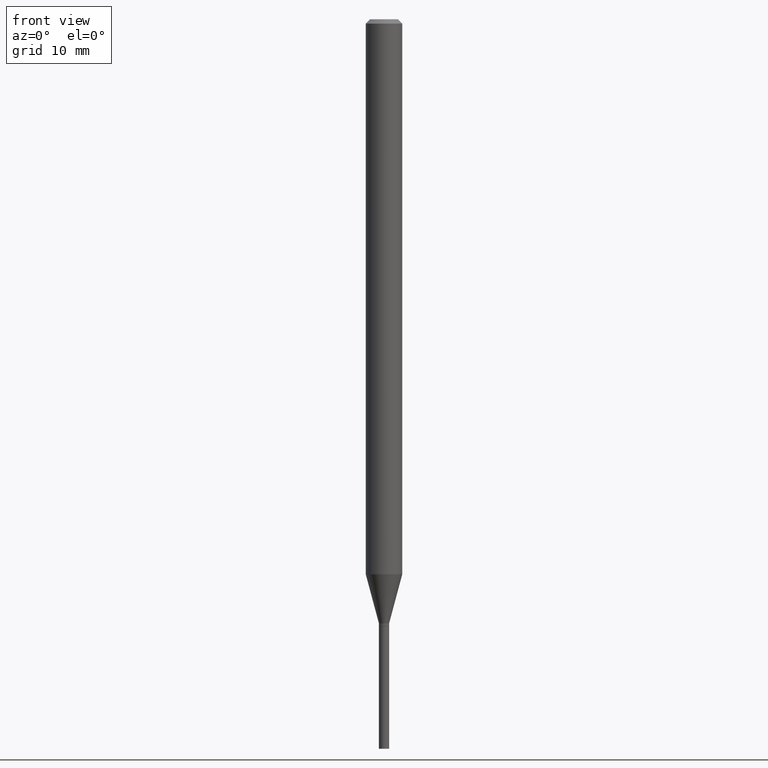
[diagram: clean part render]
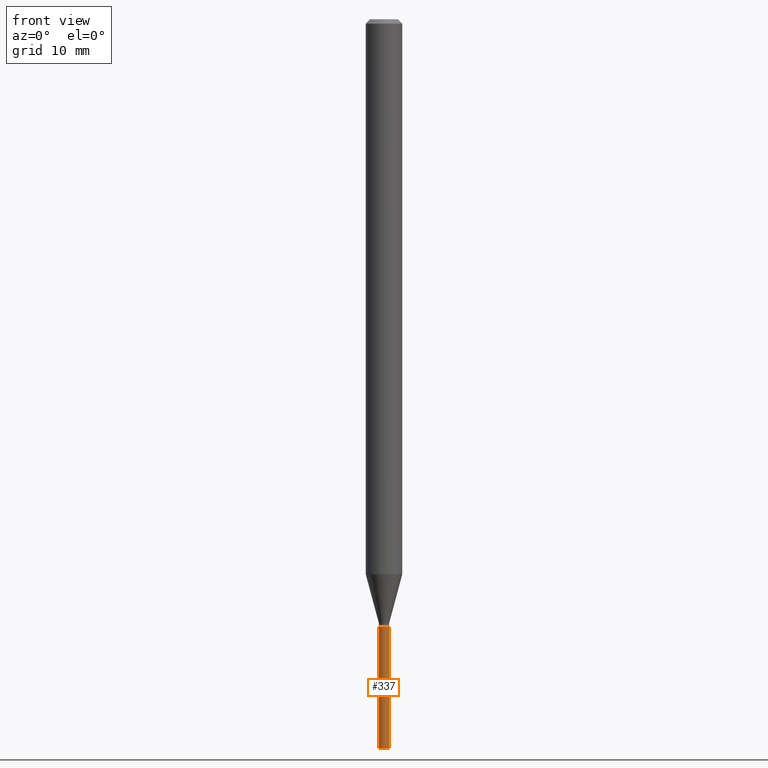
[diagram: same view with one face highlighted and labeled with its STEP entity id]
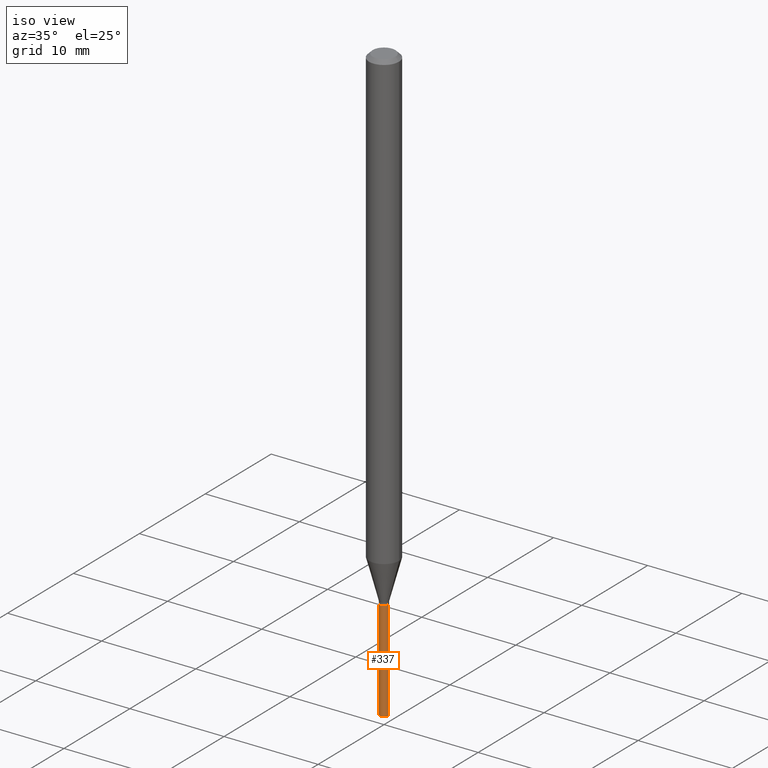
[diagram: same view with one face highlighted and labeled with its STEP entity id]
A machine part, front view. The second image highlights one B-rep face of the part: STEP entity #337.
A second angle (iso view) of the same face is appended — the face is thin or edge-on in the first view.
In plain terms, the highlighted cylindrical surface (edge-blend (fillet) strip) has radius 0.4445 mm, axis along (-0, 0, 1).
Its self-contained STEP definition (entity closure, byte-faithful):
#3 = DIRECTION ( 'NONE',  ( -2.445468806185136597E-29, 3.491481338843145583E-15, 1.000000000000000000 ) ) ;
#28 = VECTOR ( 'NONE', #346, 39.37007874015748143 ) ;
#42 = ORIENTED_EDGE ( 'NONE', *, *, #382, .T. ) ;
#56 = DIRECTION ( 'NONE',  ( -2.445468806185136597E-29, 3.491481338843145583E-15, 1.000000000000000000 ) ) ;
#76 = CARTESIAN_POINT ( 'NONE',  ( 0.000000000000000000, 0.000000000000000000, 0.000000000000000000 ) ) ;
#82 = ORIENTED_EDGE ( 'NONE', *, *, #332, .F. ) ;
#88 = CARTESIAN_POINT ( 'NONE',  ( 5.086575116865084435E-29, -7.262281184793743569E-15, -2.080000000000000071 ) ) ;
#92 = CARTESIAN_POINT ( 'NONE',  ( 0.01750000000000000167, -7.384483031653253552E-15, -2.080000000000000071 ) ) ;
#95 = CARTESIAN_POINT ( 'NONE',  ( -0.01750000000000000167, -7.871147287192785430E-15, -2.080000000000000071 ) ) ;
#96 = EDGE_CURVE ( 'NONE', #100, #148, #166, .T. ) ;
#98 = EDGE_LOOP ( 'NONE', ( #82, #42, #295, #114 ) ) ;
#100 = VERTEX_POINT ( 'NONE', #95 ) ;
#114 = ORIENTED_EDGE ( 'NONE', *, *, #96, .F. ) ;
#117 = CYLINDRICAL_SURFACE ( 'NONE', #290, 0.01750000000000000167 ) ;
#137 = LINE ( 'NONE', #442, #379 ) ;
#148 = VERTEX_POINT ( 'NONE', #92 ) ;
#155 = EDGE_CURVE ( 'NONE', #261, #148, #229, .T. ) ;
#164 = CARTESIAN_POINT ( 'NONE',  ( 0.01750000000000000167, -1.222018468595096625E-16, 8.533309357642889039E-31 ) ) ;
#166 = CIRCLE ( 'NONE', #424, 0.01750000000000000167 ) ;
#177 = VERTEX_POINT ( 'NONE', #412 ) ;
#179 = CARTESIAN_POINT ( 'NONE',  ( 6.113672015462842613E-29, -8.728703347107864943E-15, -2.500000000000000000 ) ) ;
#210 = AXIS2_PLACEMENT_3D ( 'NONE', #179, #291, #333 ) ;
#229 = LINE ( 'NONE', #164, #28 ) ;
#240 = CARTESIAN_POINT ( 'NONE',  ( 0.01750000000000000167, -8.850905193967374926E-15, -2.500000000000000000 ) ) ;
#253 = FACE_OUTER_BOUND ( 'NONE', #98, .T. ) ;
#260 = DIRECTION ( 'NONE',  ( -2.445468806185136877E-29, 3.491481338843145188E-15, 1.000000000000000000 ) ) ;
#261 = VERTEX_POINT ( 'NONE', #240 ) ;
#272 = DIRECTION ( 'NONE',  ( 1.000000000000000000, -6.982962677686248567E-15, 0.000000000000000000 ) ) ;
#290 = AXIS2_PLACEMENT_3D ( 'NONE', #76, #3, #335 ) ;
#291 = DIRECTION ( 'NONE',  ( -2.445468806185136597E-29, 3.491481338843145583E-15, 1.000000000000000000 ) ) ;
#295 = ORIENTED_EDGE ( 'NONE', *, *, #155, .T. ) ;
#325 = CIRCLE ( 'NONE', #210, 0.01750000000000000167 ) ;
#332 = EDGE_CURVE ( 'NONE', #177, #100, #137, .T. ) ;
#333 = DIRECTION ( 'NONE',  ( 1.000000000000000000, -6.982962677686303787E-15, 0.000000000000000000 ) ) ;
#335 = DIRECTION ( 'NONE',  ( 1.000000000000000000, -6.982962677686265922E-15, 4.876176775795936353E-29 ) ) ;
#337 = ADVANCED_FACE ( 'NONE', ( #253 ), #117, .T. ) ;
#346 = DIRECTION ( 'NONE',  ( -2.445468806185136877E-29, 3.491481338843145188E-15, 1.000000000000000000 ) ) ;
#379 = VECTOR ( 'NONE', #260, 39.37007874015748143 ) ;
#382 = EDGE_CURVE ( 'NONE', #177, #261, #325, .T. ) ;
#412 = CARTESIAN_POINT ( 'NONE',  ( -0.01750000000000000167, -7.871147287192785430E-15, -2.500000000000000000 ) ) ;
#424 = AXIS2_PLACEMENT_3D ( 'NONE', #88, #56, #272 ) ;
#442 = CARTESIAN_POINT ( 'NONE',  ( -0.01750000000000000167, 1.243449787580175444E-16, -8.608136407946085539E-31 ) ) ;